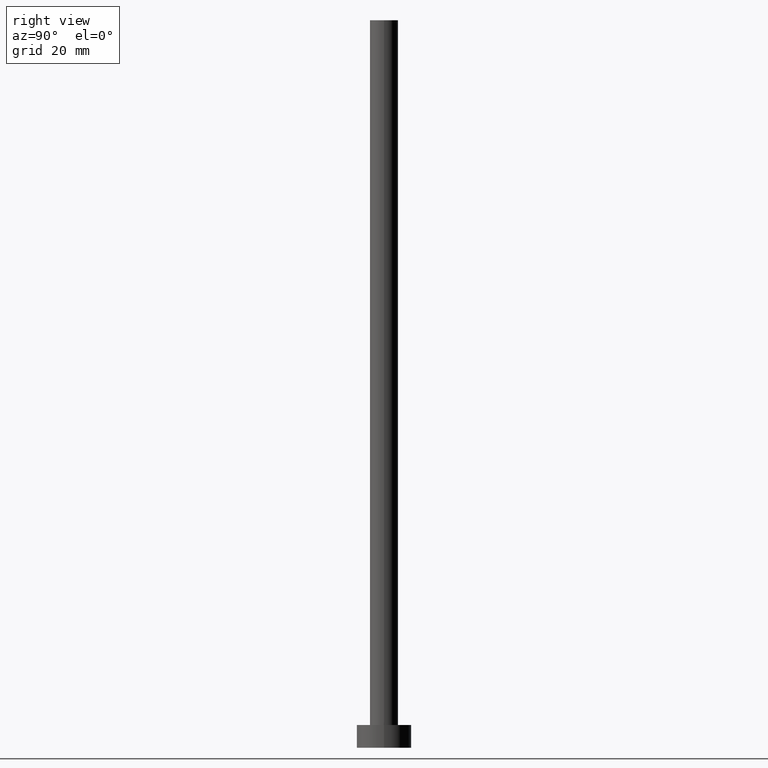
[diagram: clean part render]
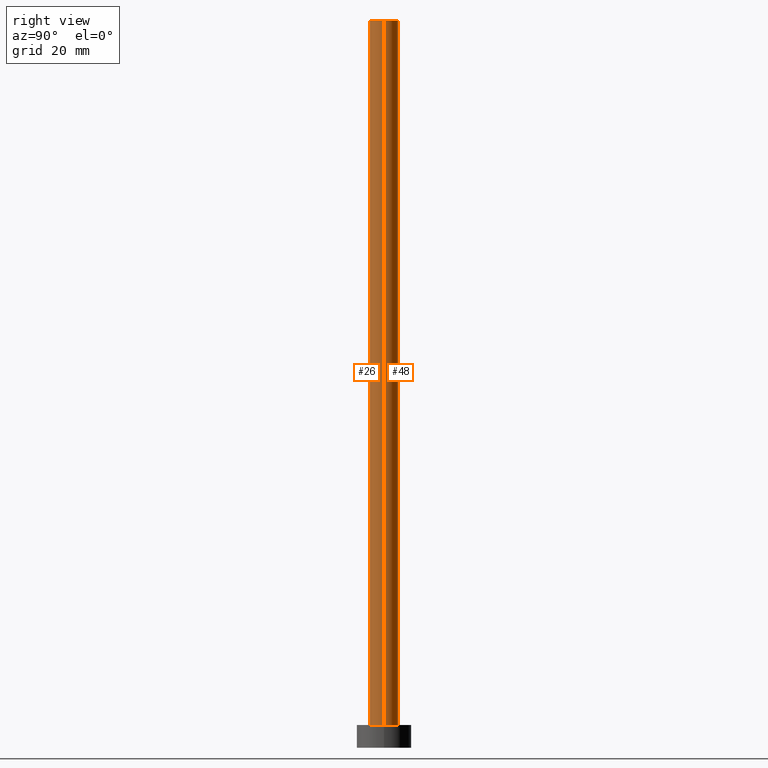
[diagram: same view with one multi-face feature highlighted, each face labeled with its STEP entity id]
A machine part, right view. The highlighted faces form ONE feature: a constant-radius fillet chain: 2 tangent blend faces with common blend radius 3.1 mm. The faces share edges in the B-rep.
Their STEP definitions:
[1] entity #48 (Cylinder):
#5 = DIRECTION ( 'NONE',  ( 0.000000000000000000, 0.000000000000000000, 1.000000000000000000 ) ) ;
#15 = CARTESIAN_POINT ( 'NONE',  ( 3.100000000000000089, 3.796405077356794918E-16, 160.0000000000000000 ) ) ;
#21 = EDGE_CURVE ( 'NONE', #88, #151, #40, .T. ) ;
#32 = VERTEX_POINT ( 'NONE', #37 ) ;
#37 = CARTESIAN_POINT ( 'NONE',  ( 3.100000000000000089, 3.796405077356794918E-16, 5.000000000000000000 ) ) ;
#40 = CIRCLE ( 'NONE', #186, 3.100000000000000089 ) ;
#41 = CARTESIAN_POINT ( 'NONE',  ( 0.000000000000000000, 0.000000000000000000, 160.0000000000000000 ) ) ;
#43 = LINE ( 'NONE', #152, #111 ) ;
#48 = ADVANCED_FACE ( 'NONE', ( #230 ), #253, .T. ) ;
#57 = DIRECTION ( 'NONE',  ( -1.000000000000000000, 0.000000000000000000, 0.000000000000000000 ) ) ;
#64 = CIRCLE ( 'NONE', #161, 3.100000000000000089 ) ;
#66 = ORIENTED_EDGE ( 'NONE', *, *, #67, .T. ) ;
#67 = EDGE_CURVE ( 'NONE', #88, #32, #138, .T. ) ;
#76 = EDGE_CURVE ( 'NONE', #151, #160, #43, .T. ) ;
#88 = VERTEX_POINT ( 'NONE', #197 ) ;
#90 = EDGE_LOOP ( 'NONE', ( #203, #66, #251, #133 ) ) ;
#94 = DIRECTION ( 'NONE',  ( -0.000000000000000000, -0.000000000000000000, -1.000000000000000000 ) ) ;
#97 = DIRECTION ( 'NONE',  ( 0.000000000000000000, 0.000000000000000000, 1.000000000000000000 ) ) ;
#101 = CARTESIAN_POINT ( 'NONE',  ( -3.100000000000000089, 0.000000000000000000, 5.000000000000000000 ) ) ;
#111 = VECTOR ( 'NONE', #94, 1000.000000000000000 ) ;
#131 = CARTESIAN_POINT ( 'NONE',  ( 0.000000000000000000, 0.000000000000000000, 160.0000000000000000 ) ) ;
#133 = ORIENTED_EDGE ( 'NONE', *, *, #76, .F. ) ;
#134 = DIRECTION ( 'NONE',  ( 1.000000000000000000, 0.000000000000000000, 0.000000000000000000 ) ) ;
#138 = LINE ( 'NONE', #15, #148 ) ;
#148 = VECTOR ( 'NONE', #250, 1000.000000000000000 ) ;
#151 = VERTEX_POINT ( 'NONE', #255 ) ;
#152 = CARTESIAN_POINT ( 'NONE',  ( -3.100000000000000089, 0.000000000000000000, 160.0000000000000000 ) ) ;
#155 = DIRECTION ( 'NONE',  ( -0.000000000000000000, -0.000000000000000000, -1.000000000000000000 ) ) ;
#160 = VERTEX_POINT ( 'NONE', #101 ) ;
#161 = AXIS2_PLACEMENT_3D ( 'NONE', #215, #5, #233 ) ;
#179 = EDGE_CURVE ( 'NONE', #32, #160, #64, .T. ) ;
#186 = AXIS2_PLACEMENT_3D ( 'NONE', #131, #97, #134 ) ;
#188 = AXIS2_PLACEMENT_3D ( 'NONE', #41, #155, #57 ) ;
#197 = CARTESIAN_POINT ( 'NONE',  ( 3.100000000000000089, 3.796405077356794918E-16, 160.0000000000000000 ) ) ;
#203 = ORIENTED_EDGE ( 'NONE', *, *, #21, .F. ) ;
#215 = CARTESIAN_POINT ( 'NONE',  ( 0.000000000000000000, 0.000000000000000000, 5.000000000000000000 ) ) ;
#230 = FACE_OUTER_BOUND ( 'NONE', #90, .T. ) ;
#233 = DIRECTION ( 'NONE',  ( 1.000000000000000000, 0.000000000000000000, 0.000000000000000000 ) ) ;
#250 = DIRECTION ( 'NONE',  ( -0.000000000000000000, -0.000000000000000000, -1.000000000000000000 ) ) ;
#251 = ORIENTED_EDGE ( 'NONE', *, *, #179, .T. ) ;
#253 = CYLINDRICAL_SURFACE ( 'NONE', #188, 3.100000000000000089 ) ;
#255 = CARTESIAN_POINT ( 'NONE',  ( -3.100000000000000089, 0.000000000000000000, 160.0000000000000000 ) ) ;
[2] entity #26 (Cylinder):
#15 = CARTESIAN_POINT ( 'NONE',  ( 3.100000000000000089, 3.796405077356794918E-16, 160.0000000000000000 ) ) ;
#26 = ADVANCED_FACE ( 'NONE', ( #211 ), #115, .T. ) ;
#30 = EDGE_CURVE ( 'NONE', #160, #32, #91, .T. ) ;
#32 = VERTEX_POINT ( 'NONE', #37 ) ;
#35 = EDGE_LOOP ( 'NONE', ( #121, #173, #95, #245 ) ) ;
#37 = CARTESIAN_POINT ( 'NONE',  ( 3.100000000000000089, 3.796405077356794918E-16, 5.000000000000000000 ) ) ;
#43 = LINE ( 'NONE', #152, #111 ) ;
#44 = CARTESIAN_POINT ( 'NONE',  ( 0.000000000000000000, 0.000000000000000000, 160.0000000000000000 ) ) ;
#62 = CARTESIAN_POINT ( 'NONE',  ( 0.000000000000000000, 0.000000000000000000, 5.000000000000000000 ) ) ;
#67 = EDGE_CURVE ( 'NONE', #88, #32, #138, .T. ) ;
#69 = CARTESIAN_POINT ( 'NONE',  ( 0.000000000000000000, 0.000000000000000000, 160.0000000000000000 ) ) ;
#76 = EDGE_CURVE ( 'NONE', #151, #160, #43, .T. ) ;
#84 = CIRCLE ( 'NONE', #183, 3.100000000000000089 ) ;
#88 = VERTEX_POINT ( 'NONE', #197 ) ;
#91 = CIRCLE ( 'NONE', #252, 3.100000000000000089 ) ;
#94 = DIRECTION ( 'NONE',  ( -0.000000000000000000, -0.000000000000000000, -1.000000000000000000 ) ) ;
#95 = ORIENTED_EDGE ( 'NONE', *, *, #76, .T. ) ;
#101 = CARTESIAN_POINT ( 'NONE',  ( -3.100000000000000089, 0.000000000000000000, 5.000000000000000000 ) ) ;
#110 = DIRECTION ( 'NONE',  ( 0.000000000000000000, 0.000000000000000000, 1.000000000000000000 ) ) ;
#111 = VECTOR ( 'NONE', #94, 1000.000000000000000 ) ;
#115 = CYLINDRICAL_SURFACE ( 'NONE', #156, 3.100000000000000089 ) ;
#121 = ORIENTED_EDGE ( 'NONE', *, *, #67, .F. ) ;
#138 = LINE ( 'NONE', #15, #148 ) ;
#148 = VECTOR ( 'NONE', #250, 1000.000000000000000 ) ;
#151 = VERTEX_POINT ( 'NONE', #255 ) ;
#152 = CARTESIAN_POINT ( 'NONE',  ( -3.100000000000000089, 0.000000000000000000, 160.0000000000000000 ) ) ;
#156 = AXIS2_PLACEMENT_3D ( 'NONE', #44, #181, #180 ) ;
#160 = VERTEX_POINT ( 'NONE', #101 ) ;
#173 = ORIENTED_EDGE ( 'NONE', *, *, #237, .F. ) ;
#180 = DIRECTION ( 'NONE',  ( -1.000000000000000000, 0.000000000000000000, 0.000000000000000000 ) ) ;
#181 = DIRECTION ( 'NONE',  ( -0.000000000000000000, -0.000000000000000000, -1.000000000000000000 ) ) ;
#183 = AXIS2_PLACEMENT_3D ( 'NONE', #69, #110, #241 ) ;
#196 = DIRECTION ( 'NONE',  ( 0.000000000000000000, 0.000000000000000000, 1.000000000000000000 ) ) ;
#197 = CARTESIAN_POINT ( 'NONE',  ( 3.100000000000000089, 3.796405077356794918E-16, 160.0000000000000000 ) ) ;
#209 = DIRECTION ( 'NONE',  ( 1.000000000000000000, 0.000000000000000000, 0.000000000000000000 ) ) ;
#211 = FACE_OUTER_BOUND ( 'NONE', #35, .T. ) ;
#237 = EDGE_CURVE ( 'NONE', #151, #88, #84, .T. ) ;
#241 = DIRECTION ( 'NONE',  ( 1.000000000000000000, 0.000000000000000000, 0.000000000000000000 ) ) ;
#245 = ORIENTED_EDGE ( 'NONE', *, *, #30, .T. ) ;
#250 = DIRECTION ( 'NONE',  ( -0.000000000000000000, -0.000000000000000000, -1.000000000000000000 ) ) ;
#252 = AXIS2_PLACEMENT_3D ( 'NONE', #62, #196, #209 ) ;
#255 = CARTESIAN_POINT ( 'NONE',  ( -3.100000000000000089, 0.000000000000000000, 160.0000000000000000 ) ) ;